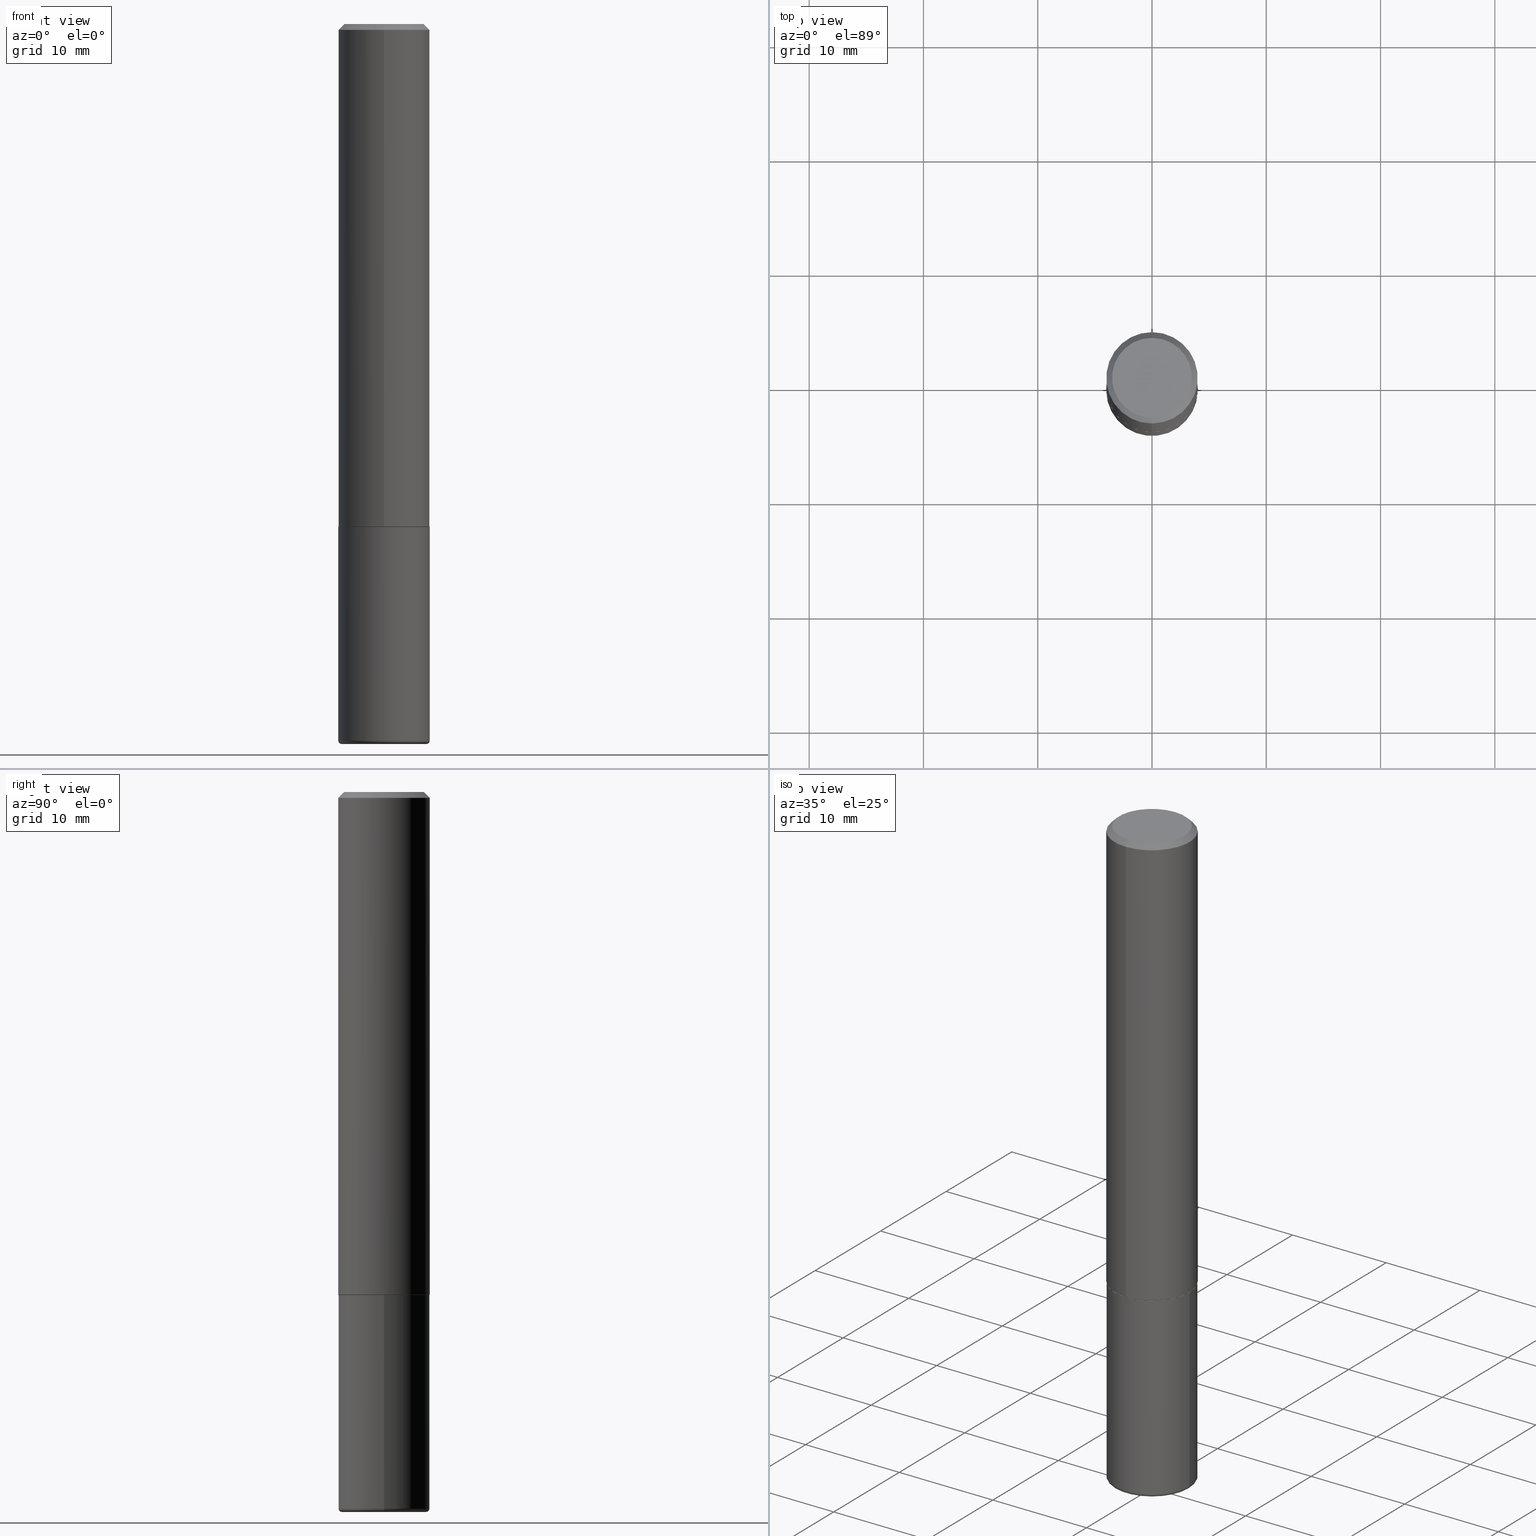
[diagram: canonical four-view strip — front | top / right | iso, engineering-drawing reading convention]
A machine part, canonical four-view strip (front | top / right | iso — engineering-drawing reading convention). The complete STEP part file that produces these views, byte-faithful:
ISO-10303-21;
HEADER;
FILE_DESCRIPTION (( 'STEP AP203' ),
    '1' );
FILE_NAME ('44305.STEP',
    '2024-03-04T07:16:21',
    ( '' ),
    ( '' ),
    'SwSTEP 2.0',
    'SolidWorks 2023',
    '' );
FILE_SCHEMA (( 'CONFIG_CONTROL_DESIGN' ));
ENDSEC;

DATA;
#1 = CARTESIAN_POINT ( 'NONE',  ( -0.1575000000000000289, -7.499616876112147092E-15, -2.468500000000000139 ) ) ;
#2 = APPROVAL_STATUS ( 'not_yet_approved' ) ;
#3 = AXIS2_PLACEMENT_3D ( 'NONE', #131, #175, #193 ) ;
#4 = AXIS2_PLACEMENT_3D ( 'NONE', #261, #385, #259 ) ;
#5 = AXIS2_PLACEMENT_3D ( 'NONE', #219, #50, #149 ) ;
#6 = CARTESIAN_POINT ( 'NONE',  ( 0.000000000000000000, 0.000000000000000000, 0.000000000000000000 ) ) ;
#7 = PRODUCT_DEFINITION ( 'UNKNOWN', '', #18, #207 ) ;
#8 = VERTEX_POINT ( 'NONE', #91 ) ;
#9 = CIRCLE ( 'NONE', #118, 0.1575000000000001954 ) ;
#10 = AXIS2_PLACEMENT_3D ( 'NONE', #314, #346, #23 ) ;
#11 = ORIENTED_EDGE ( 'NONE', *, *, #298, .F. ) ;
#12 = ADVANCED_FACE ( 'NONE', ( #245 ), #262, .T. ) ;
#13 = DIRECTION ( 'NONE',  ( -6.982962677686266711E-15, -1.000000000000000000, 3.491481338843145583E-15 ) ) ;
#14 = DATE_AND_TIME ( #42, #282 ) ;
#15 = VERTEX_POINT ( 'NONE', #401 ) ;
#16 = CONICAL_SURFACE ( 'NONE', #163, 0.1575000000000000289, 0.7853981633974459475 ) ;
#17 = CARTESIAN_POINT ( 'NONE',  ( -1.080528434649015779E-15, -0.1575000000000000844, -0.01999999999999951816 ) ) ;
#18 = PRODUCT_DEFINITION_FORMATION_WITH_SPECIFIED_SOURCE ( 'ANY', '', #293, .NOT_KNOWN. ) ;
#19 = DIRECTION ( 'NONE',  ( -6.982962677686265922E-15, -1.000000000000000000, 3.483989149690439733E-15 ) ) ;
#20 = ADVANCED_FACE ( 'NONE', ( #344 ), #218, .F. ) ;
#21 = MECHANICAL_CONTEXT ( 'NONE', #324, 'mechanical' ) ;
#22 = ORIENTED_EDGE ( 'NONE', *, *, #284, .F. ) ;
#23 = DIRECTION ( 'NONE',  ( -6.982962677686264344E-15, -1.000000000000000000, 3.496114991891764787E-15 ) ) ;
#24 = CALENDAR_DATE ( 2024, 4, 3 ) ;
#25 = CARTESIAN_POINT ( 'NONE',  ( 4.236285612954512953E-29, -6.048293123277982656E-15, -1.732300000000000173 ) ) ;
#26 = VERTEX_POINT ( 'NONE', #116 ) ;
#27 = DIRECTION ( 'NONE',  ( -2.445468806185136597E-29, 3.491481338843145583E-15, 1.000000000000000000 ) ) ;
#28 = CC_DESIGN_APPROVAL ( #181, ( #126 ) ) ;
#29 = CARTESIAN_POINT ( 'NONE',  ( 6.036639748068010694E-29, -8.618721684934306273E-15, -2.468500000000000139 ) ) ;
#30 = DATE_TIME_ROLE ( 'creation_date' ) ;
#31 = EDGE_CURVE ( 'NONE', #364, #238, #178, .T. ) ;
#32 = LINE ( 'NONE', #160, #104 ) ;
#33 = PERSON_AND_ORGANIZATION_ROLE ( 'design_owner' ) ;
#34 = CARTESIAN_POINT ( 'NONE',  ( 4.245348604180634824E-29, -6.035314404008749576E-15, -1.732300000000000173 ) ) ;
#35 = DIRECTION ( 'NONE',  ( -6.982962677686265922E-15, -1.000000000000000000, 3.469013325287948955E-15 ) ) ;
#36 = CIRCLE ( 'NONE', #87, 0.1565000000000000280 ) ;
#37 = CARTESIAN_POINT ( 'NONE',  ( 9.601573681818640393E-16, 0.1375000000000003442, -6.246930207500991880E-16 ) ) ;
#38 = DIRECTION ( 'NONE',  ( -6.982962677686264344E-15, -1.000000000000000000, 3.496114991891764787E-15 ) ) ;
#39 = COORDINATED_UNIVERSAL_TIME_OFFSET ( 5, 0, .BEHIND. ) ;
#40 = LINE ( 'NONE', #71, #216 ) ;
#41 = EDGE_CURVE ( 'NONE', #26, #106, #341, .T. ) ;
#42 = CALENDAR_DATE ( 2024, 4, 3 ) ;
#43 = ORIENTED_EDGE ( 'NONE', *, *, #198, .T. ) ;
#44 = DATE_AND_TIME ( #273, #237 ) ;
#45 = DATE_AND_TIME ( #141, #208 ) ;
#46 = DIRECTION ( 'NONE',  ( -6.982962677686266711E-15, -1.000000000000000000, 3.491179544618865941E-15 ) ) ;
#47 = ADVANCED_FACE ( 'NONE', ( #128 ), #16, .T. ) ;
#48 = CIRCLE ( 'NONE', #10, 0.1575000000000000289 ) ;
#49 = ORIENTED_EDGE ( 'NONE', *, *, #41, .F. ) ;
#50 = DIRECTION ( 'NONE',  ( -2.450700573907887962E-29, 3.483989149690439338E-15, 1.000000000000000000 ) ) ;
#51 = ORIENTED_EDGE ( 'NONE', *, *, #335, .F. ) ;
#52 =( CONVERSION_BASED_UNIT ( 'INCH', #151 ) LENGTH_UNIT ( ) NAMED_UNIT ( #159 ) );
#53 = APPROVAL ( #2, 'UNSPECIFIED' ) ;
#54 = ORIENTED_EDGE ( 'NONE', *, *, #173, .F. ) ;
#55 = CC_DESIGN_SECURITY_CLASSIFICATION ( #126, ( #18 ) ) ;
#56 = LINE ( 'NONE', #100, #375 ) ;
#57 = CARTESIAN_POINT ( 'NONE',  ( 7.138621815623507865E-45, -1.014847803692176449E-30, -2.912890253353251717E-16 ) ) ;
#58 = FACE_OUTER_BOUND ( 'NONE', #215, .T. ) ;
#59 = ORIENTED_EDGE ( 'NONE', *, *, #268, .T. ) ;
#60 = CARTESIAN_POINT ( 'NONE',  ( -1.092833659057858473E-15, -0.1565000000000060787, -1.732299999999999729 ) ) ;
#61 = CARTESIAN_POINT ( 'NONE',  ( 6.065496279980994755E-29, -8.659921164732655335E-15, -2.480300000000000171 ) ) ;
#62 = APPROVAL_ROLE ( '' ) ;
#63 = APPROVAL ( #115, 'UNSPECIFIED' ) ;
#64 = ORIENTED_EDGE ( 'NONE', *, *, #166, .T. ) ;
#65 = CIRCLE ( 'NONE', #233, 0.1456999999999999684 ) ;
#66 = DIRECTION ( 'NONE',  ( -2.445468806185136597E-29, 3.491481338843145583E-15, 1.000000000000000000 ) ) ;
#67 = DIRECTION ( 'NONE',  ( 1.000000000000000000, -6.982962677686267499E-15, 0.000000000000000000 ) ) ;
#68 = CARTESIAN_POINT ( 'NONE',  ( 1.119104808822180283E-15, 0.1574999999999941447, -1.731300000000000727 ) ) ;
#69 = ADVANCED_FACE ( 'NONE', ( #294 ), #391, .T. ) ;
#70 = AXIS2_PLACEMENT_3D ( 'NONE', #112, #184, #145 ) ;
#71 = CARTESIAN_POINT ( 'NONE',  ( 0.1575000000000000289, -1.099816621735587283E-15, 7.679978421878599434E-30 ) ) ;
#72 = ORIENTED_EDGE ( 'NONE', *, *, #93, .F. ) ;
#73 = CLOSED_SHELL ( 'NONE', ( #69, #326, #129, #406, #12, #263 ) ) ;
#74 = CIRCLE ( 'NONE', #328, 0.1575000000000000289 ) ;
#75 = APPROVAL_STATUS ( 'not_yet_approved' ) ;
#76 = EDGE_LOOP ( 'NONE', ( #172, #247, #154, #169 ) ) ;
#77 = AXIS2_PLACEMENT_3D ( 'NONE', #371, #278, #407 ) ;
#78 = ORIENTED_EDGE ( 'NONE', *, *, #363, .F. ) ;
#79 = DIRECTION ( 'NONE',  ( -2.445468806185136877E-29, 3.491481338843145188E-15, 1.000000000000000000 ) ) ;
#80 = EDGE_CURVE ( 'NONE', #15, #106, #40, .T. ) ;
#81 = ORIENTED_EDGE ( 'NONE', *, *, #234, .F. ) ;
#82 = ADVANCED_BREP_SHAPE_REPRESENTATION ( '44305', ( #388, #111, #3 ), #89 ) ;
#83 = CARTESIAN_POINT ( 'NONE',  ( 1.029986994958725760E-15, 0.1375000000000003442, -7.703375334177617246E-16 ) ) ;
#84 = ORIENTED_EDGE ( 'NONE', *, *, #142, .F. ) ;
#85 =( NAMED_UNIT ( * ) SI_UNIT ( $, .STERADIAN. ) SOLID_ANGLE_UNIT ( ) );
#86 = DIRECTION ( 'NONE',  ( -1.000000000000000000, 6.982962677686265922E-15, -4.876176775795935793E-29 ) ) ;
#87 = AXIS2_PLACEMENT_3D ( 'NONE', #34, #288, #46 ) ;
#88 = ORIENTED_EDGE ( 'NONE', *, *, #41, .T. ) ;
#89 =( GEOMETRIC_REPRESENTATION_CONTEXT ( 3 ) GLOBAL_UNCERTAINTY_ASSIGNED_CONTEXT ( ( #113 ) ) GLOBAL_UNIT_ASSIGNED_CONTEXT ( ( #52, #408, #85 ) ) REPRESENTATION_CONTEXT ( 'NONE', 'WORKASPACE' ) );
#90 = DIRECTION ( 'NONE',  ( -2.450700573907887962E-29, 3.483989149690439338E-15, 1.000000000000000000 ) ) ;
#91 = CARTESIAN_POINT ( 'NONE',  ( -0.1456999999999999684, -7.562138637421167650E-15, -2.480300000000000171 ) ) ;
#92 = DIRECTION ( 'NONE',  ( -1.000000000000000000, 7.105427357600960838E-15, 0.000000000000000000 ) ) ;
#93 = EDGE_CURVE ( 'NONE', #369, #135, #256, .T. ) ;
#94 = VERTEX_POINT ( 'NONE', #158 ) ;
#95 = CARTESIAN_POINT ( 'NONE',  ( 7.138621815623507865E-45, -1.014847803692176449E-30, -2.912890253353251717E-16 ) ) ;
#96 = VECTOR ( 'NONE', #123, 39.37007874015748143 ) ;
#97 = LINE ( 'NONE', #157, #196 ) ;
#98 = APPLICATION_CONTEXT ( 'configuration controlled 3d designs of mechanical parts and assemblies' ) ;
#99 = ADVANCED_FACE ( 'NONE', ( #286 ), #356, .T. ) ;
#100 = CARTESIAN_POINT ( 'NONE',  ( 1.099816621735587480E-15, 0.1574999999999999456, -0.02000000000000061798 ) ) ;
#101 = AXIS2_PLACEMENT_3D ( 'NONE', #280, #165, #195 ) ;
#102 = EDGE_CURVE ( 'NONE', #340, #306, #36, .T. ) ;
#103 = AXIS2_PLACEMENT_3D ( 'NONE', #383, #224, #325 ) ;
#104 = VECTOR ( 'NONE', #418, 39.37007874015748854 ) ;
#105 = ORIENTED_EDGE ( 'NONE', *, *, #234, .T. ) ;
#106 = VERTEX_POINT ( 'NONE', #264 ) ;
#107 = DIRECTION ( 'NONE',  ( 5.024295867788319558E-15, 0.7071067811865862085, 0.7071067811865088260 ) ) ;
#108 = SECURITY_CLASSIFICATION_LEVEL ( 'unclassified' ) ;
#109 = AXIS2_PLACEMENT_3D ( 'NONE', #156, #117, #283 ) ;
#110 = EDGE_LOOP ( 'NONE', ( #81, #43, #310, #235 ) ) ;
#111 = MANIFOLD_SOLID_BREP ( 'Body-Move/Copy2[2]', #267 ) ;
#112 = CARTESIAN_POINT ( 'NONE',  ( 4.245348604180634824E-29, -6.035314404008749576E-15, -1.732300000000000173 ) ) ;
#113 = UNCERTAINTY_MEASURE_WITH_UNIT (LENGTH_MEASURE( 1.000000000000000082E-05 ), #52, 'distance_accuracy_value', 'NONE');
#114 = ORIENTED_EDGE ( 'NONE', *, *, #80, .T. ) ;
#115 = APPROVAL_STATUS ( 'not_yet_approved' ) ;
#116 = CARTESIAN_POINT ( 'NONE',  ( -0.1575000000000000289, -6.214402595283986467E-15, -1.732300000000000173 ) ) ;
#117 = DIRECTION ( 'NONE',  ( -2.445468806185136597E-29, 3.491481338843145583E-15, 1.000000000000000000 ) ) ;
#118 = AXIS2_PLACEMENT_3D ( 'NONE', #162, #127, #35 ) ;
#119 = ORIENTED_EDGE ( 'NONE', *, *, #191, .T. ) ;
#120 = AXIS2_PLACEMENT_3D ( 'NONE', #37, #255, #413 ) ;
#121 = LINE ( 'NONE', #322, #96 ) ;
#122 = VERTEX_POINT ( 'NONE', #168 ) ;
#123 = DIRECTION ( 'NONE',  ( -2.450700573907887682E-29, 3.483989149690438944E-15, 1.000000000000000000 ) ) ;
#124 = DIRECTION ( 'NONE',  ( -2.450700573907887682E-29, 3.483989149690438944E-15, 1.000000000000000000 ) ) ;
#125 = ADVANCED_FACE ( 'NONE', ( #296 ), #266, .T. ) ;
#126 = SECURITY_CLASSIFICATION ( '', '', #108 ) ;
#127 = DIRECTION ( 'NONE',  ( -2.450700573907887962E-29, 3.483989149690439338E-15, 1.000000000000000000 ) ) ;
#128 = FACE_OUTER_BOUND ( 'NONE', #303, .T. ) ;
#129 = ADVANCED_FACE ( 'NONE', ( #146 ), #312, .F. ) ;
#130 = AXIS2_PLACEMENT_3D ( 'NONE', #338, #90, #239 ) ;
#131 = CARTESIAN_POINT ( 'NONE',  ( 0.000000000000000000, 0.000000000000000000, 0.000000000000000000 ) ) ;
#132 = ORIENTED_EDGE ( 'NONE', *, *, #173, .T. ) ;
#133 = PERSON_AND_ORGANIZATION ( #302, #226 ) ;
#134 = EDGE_CURVE ( 'NONE', #364, #135, #56, .T. ) ;
#135 = VERTEX_POINT ( 'NONE', #289 ) ;
#136 = AXIS2_PLACEMENT_3D ( 'NONE', #246, #372, #86 ) ;
#137 = CIRCLE ( 'NONE', #362, 0.1375000000000003442 ) ;
#138 = VERTEX_POINT ( 'NONE', #1 ) ;
#139 = DIRECTION ( 'NONE',  ( 1.000000000000000000, -6.982962677686265133E-15, 4.883557194083112340E-29 ) ) ;
#140 = FACE_OUTER_BOUND ( 'NONE', #404, .T. ) ;
#141 = CALENDAR_DATE ( 2024, 4, 3 ) ;
#142 = EDGE_CURVE ( 'NONE', #122, #369, #97, .T. ) ;
#143 = TOROIDAL_SURFACE ( 'NONE', #109, 0.1456999999999999962, 0.01180000000000006218 ) ;
#144 = EDGE_LOOP ( 'NONE', ( #330, #119 ) ) ;
#145 = DIRECTION ( 'NONE',  ( -6.982962677686266711E-15, -1.000000000000000000, 3.491179544618865941E-15 ) ) ;
#146 = FACE_OUTER_BOUND ( 'NONE', #366, .T. ) ;
#147 = APPLICATION_PROTOCOL_DEFINITION ( 'international standard', 'config_control_design', 1994, #98 ) ;
#148 = CARTESIAN_POINT ( 'NONE',  ( 6.036639748068010694E-29, -8.618721684934306273E-15, -2.468500000000000139 ) ) ;
#149 = DIRECTION ( 'NONE',  ( -6.982962677686265922E-15, -1.000000000000000000, 3.483989149690439733E-15 ) ) ;
#150 = DIRECTION ( 'NONE',  ( -2.445468806185136597E-29, 3.491481338843145583E-15, 1.000000000000000000 ) ) ;
#151 = LENGTH_MEASURE_WITH_UNIT ( LENGTH_MEASURE( 0.02539999999999999897 ), #405 );
#152 = FACE_OUTER_BOUND ( 'NONE', #76, .T. ) ;
#153 = DATE_AND_TIME ( #24, #357 ) ;
#154 = ORIENTED_EDGE ( 'NONE', *, *, #93, .T. ) ;
#155 = VECTOR ( 'NONE', #79, 39.37007874015748143 ) ;
#156 = CARTESIAN_POINT ( 'NONE',  ( 6.036639748068010694E-29, -8.618721684934306273E-15, -2.468500000000000139 ) ) ;
#157 = CARTESIAN_POINT ( 'NONE',  ( -1.099816621735587480E-15, -0.1575000000000000844, 5.487282910762445666E-16 ) ) ;
#158 = CARTESIAN_POINT ( 'NONE',  ( 0.1456999999999999684, -9.677338826871543903E-15, -2.480300000000000171 ) ) ;
#159 = DIMENSIONAL_EXPONENTS ( 1.000000000000000000, 0.000000000000000000, 0.000000000000000000, 0.000000000000000000, 0.000000000000000000, 0.000000000000000000, 0.000000000000000000 ) ;
#160 = CARTESIAN_POINT ( 'NONE',  ( -1.092833659057858473E-15, -0.1565000000000060787, -1.732299999999999729 ) ) ;
#161 = ADVANCED_FACE ( 'NONE', ( #152 ), #249, .T. ) ;
#162 = CARTESIAN_POINT ( 'NONE',  ( 4.242897903606727500E-29, -6.031830414859058130E-15, -1.731300000000000283 ) ) ;
#163 = AXIS2_PLACEMENT_3D ( 'NONE', #229, #231, #199 ) ;
#164 = CIRCLE ( 'NONE', #396, 0.1575000000000000011 ) ;
#165 = DIRECTION ( 'NONE',  ( -2.450700573907887962E-29, 3.483989149690439338E-15, 1.000000000000000000 ) ) ;
#166 = EDGE_CURVE ( 'NONE', #176, #122, #9, .T. ) ;
#167 = PERSON_AND_ORGANIZATION ( #302, #226 ) ;
#168 = CARTESIAN_POINT ( 'NONE',  ( -1.099816621735545671E-15, -0.1575000000000062461, -1.731299999999999617 ) ) ;
#169 = ORIENTED_EDGE ( 'NONE', *, *, #134, .F. ) ;
#170 = ORIENTED_EDGE ( 'NONE', *, *, #102, .F. ) ;
#171 = PERSON_AND_ORGANIZATION_ROLE ( 'design_supplier' ) ;
#172 = ORIENTED_EDGE ( 'NONE', *, *, #191, .F. ) ;
#173 = EDGE_CURVE ( 'NONE', #306, #340, #232, .T. ) ;
#174 = LINE ( 'NONE', #17, #241 ) ;
#175 = DIRECTION ( 'NONE',  ( 0.000000000000000000, 0.000000000000000000, 1.000000000000000000 ) ) ;
#176 = VERTEX_POINT ( 'NONE', #68 ) ;
#177 = DIRECTION ( 'NONE',  ( 1.000000000000000000, -6.982962677686344808E-15, 0.000000000000000000 ) ) ;
#178 = CIRCLE ( 'NONE', #236, 0.1375000000000003442 ) ;
#179 = APPROVAL_PERSON_ORGANIZATION ( #332, #181, #399 ) ;
#180 = EDGE_LOOP ( 'NONE', ( #59, #333, #11, #252 ) ) ;
#181 = APPROVAL ( #75, 'UNSPECIFIED' ) ;
#182 = COORDINATED_UNIVERSAL_TIME_OFFSET ( 5, 0, .BEHIND. ) ;
#183 = DIRECTION ( 'NONE',  ( -2.450700573907887962E-29, 3.483989149690439338E-15, 1.000000000000000000 ) ) ;
#184 = DIRECTION ( 'NONE',  ( -2.450700573907887962E-29, 3.483989149690439338E-15, 1.000000000000000000 ) ) ;
#185 = ORIENTED_EDGE ( 'NONE', *, *, #198, .F. ) ;
#186 = CARTESIAN_POINT ( 'NONE',  ( 0.1456999999999999962, -9.636139347073194841E-15, -2.468500000000000139 ) ) ;
#187 = DIRECTION ( 'NONE',  ( 2.438088387897960049E-29, -3.491481338843145188E-15, -1.000000000000000000 ) ) ;
#188 = COORDINATED_UNIVERSAL_TIME_OFFSET ( 5, 0, .BEHIND. ) ;
#189 = AXIS2_PLACEMENT_3D ( 'NONE', #6, #308, #19 ) ;
#190 = ORIENTED_EDGE ( 'NONE', *, *, #102, .T. ) ;
#191 = EDGE_CURVE ( 'NONE', #238, #364, #137, .T. ) ;
#192 = DIRECTION ( 'NONE',  ( 1.000000000000000000, -6.982962677686267499E-15, 0.000000000000000000 ) ) ;
#193 = DIRECTION ( 'NONE',  ( 1.000000000000000000, 0.000000000000000000, 0.000000000000000000 ) ) ;
#194 = DIRECTION ( 'NONE',  ( 4.937700262164536209E-15, 0.7071067811865434649, -0.7071067811865516806 ) ) ;
#195 = DIRECTION ( 'NONE',  ( -6.982962677686266711E-15, -1.000000000000000000, 3.491179544618865941E-15 ) ) ;
#196 = VECTOR ( 'NONE', #124, 39.37007874015748143 ) ;
#197 = CIRCLE ( 'NONE', #331, 0.1575000000000000011 ) ;
#198 = EDGE_CURVE ( 'NONE', #8, #94, #65, .T. ) ;
#199 = DIRECTION ( 'NONE',  ( 6.982962677686264344E-15, 1.000000000000000000, -3.496114991891764787E-15 ) ) ;
#200 = ORIENTED_EDGE ( 'NONE', *, *, #358, .F. ) ;
#201 = CC_DESIGN_DATE_AND_TIME_ASSIGNMENT ( #320, #30, ( #7 ) ) ;
#202 = AXIS2_PLACEMENT_3D ( 'NONE', #214, #402, #370 ) ;
#203 = PERSON_AND_ORGANIZATION_ROLE ( 'classification_officer' ) ;
#204 = ORIENTED_EDGE ( 'NONE', *, *, #268, .F. ) ;
#205 = ORIENTED_EDGE ( 'NONE', *, *, #363, .T. ) ;
#206 = COORDINATED_UNIVERSAL_TIME_OFFSET ( 5, 0, .BEHIND. ) ;
#207 = DESIGN_CONTEXT ( 'detailed design', #98, 'design' ) ;
#208 = LOCAL_TIME ( 2, 16, 21.00000000000000000, #206 ) ;
#209 = ADVANCED_FACE ( 'NONE', ( #416 ), #354, .F. ) ;
#210 = ORIENTED_EDGE ( 'NONE', *, *, #305, .F. ) ;
#211 = CARTESIAN_POINT ( 'NONE',  ( 1.111999381464599194E-15, 0.1564999999999939773, -1.732300000000000839 ) ) ;
#212 = PERSON_AND_ORGANIZATION_ROLE ( 'creator' ) ;
#213 = ORIENTED_EDGE ( 'NONE', *, *, #31, .F. ) ;
#214 = CARTESIAN_POINT ( 'NONE',  ( 0.000000000000000000, 0.000000000000000000, 0.000000000000000000 ) ) ;
#215 = EDGE_LOOP ( 'NONE', ( #190, #269, #78, #210 ) ) ;
#216 = VECTOR ( 'NONE', #355, 39.37007874015748143 ) ;
#217 = CIRCLE ( 'NONE', #130, 0.1575000000000001954 ) ;
#218 = PLANE ( 'NONE',  #77 ) ;
#219 = CARTESIAN_POINT ( 'NONE',  ( 0.000000000000000000, 0.000000000000000000, 0.000000000000000000 ) ) ;
#220 = DIRECTION ( 'NONE',  ( -2.445468806185136597E-29, 3.491481338843145583E-15, 1.000000000000000000 ) ) ;
#221 = FACE_OUTER_BOUND ( 'NONE', #373, .T. ) ;
#222 = CALENDAR_DATE ( 2024, 4, 3 ) ;
#223 = EDGE_LOOP ( 'NONE', ( #200, #336, #114, #49 ) ) ;
#224 = DIRECTION ( 'NONE',  ( -2.445468806185136597E-29, 3.491481338843145583E-15, 1.000000000000000000 ) ) ;
#225 = DIRECTION ( 'NONE',  ( -2.450700573907887962E-29, 3.483989149690439338E-15, 1.000000000000000000 ) ) ;
#226 = ORGANIZATION ( 'UNSPECIFIED', 'UNSPECIFIED', '' ) ;
#227 = CARTESIAN_POINT ( 'NONE',  ( 1.115552095143400487E-15, 0.1564999999999939773, -1.732300000000000839 ) ) ;
#228 = DIRECTION ( 'NONE',  ( -2.445468806185136597E-29, 3.491481338843145583E-15, 1.000000000000000000 ) ) ;
#229 = CARTESIAN_POINT ( 'NONE',  ( 4.901401147815792845E-31, -6.967978299380902441E-17, -0.02000000000000006981 ) ) ;
#230 = EDGE_CURVE ( 'NONE', #176, #135, #121, .T. ) ;
#231 = DIRECTION ( 'NONE',  ( 2.450700573907887962E-29, -3.483989149690439338E-15, -1.000000000000000000 ) ) ;
#232 = CIRCLE ( 'NONE', #101, 0.1565000000000000280 ) ;
#233 = AXIS2_PLACEMENT_3D ( 'NONE', #390, #228, #67 ) ;
#234 = EDGE_CURVE ( 'NONE', #8, #138, #343, .T. ) ;
#235 = ORIENTED_EDGE ( 'NONE', *, *, #352, .F. ) ;
#236 = AXIS2_PLACEMENT_3D ( 'NONE', #57, #183, #313 ) ;
#237 = LOCAL_TIME ( 2, 16, 21.00000000000000000, #360 ) ;
#238 = VERTEX_POINT ( 'NONE', #380 ) ;
#239 = DIRECTION ( 'NONE',  ( -6.982962677686265922E-15, -1.000000000000000000, 3.469013325287948955E-15 ) ) ;
#240 = SHAPE_DEFINITION_REPRESENTATION ( #389, #82 ) ;
#241 = VECTOR ( 'NONE', #243, 39.37007874015748143 ) ;
#242 = ORIENTED_EDGE ( 'NONE', *, *, #142, .T. ) ;
#243 = DIRECTION ( 'NONE',  ( -4.851104656540952442E-15, -0.7071067811865483499, -0.7071067811865467956 ) ) ;
#244 = CC_DESIGN_PERSON_AND_ORGANIZATION_ASSIGNMENT ( #334, #171, ( #18 ) ) ;
#245 = FACE_OUTER_BOUND ( 'NONE', #110, .T. ) ;
#246 = CARTESIAN_POINT ( 'NONE',  ( 4.236285612954512953E-29, -6.048293123277982656E-15, -1.732300000000000173 ) ) ;
#247 = ORIENTED_EDGE ( 'NONE', *, *, #394, .T. ) ;
#248 = CARTESIAN_POINT ( 'NONE',  ( 6.036639748068010694E-29, -8.618721684934306273E-15, -2.468500000000000139 ) ) ;
#249 = CONICAL_SURFACE ( 'NONE', #300, 0.1575000000000000289, 0.7853981633974459475 ) ;
#250 = EDGE_LOOP ( 'NONE', ( #339, #64, #242, #395 ) ) ;
#251 = DIRECTION ( 'NONE',  ( 7.105427357601001859E-15, 1.000000000000000000, -3.491481338843145583E-15 ) ) ;
#252 = ORIENTED_EDGE ( 'NONE', *, *, #80, .F. ) ;
#253 = DIRECTION ( 'NONE',  ( 1.000000000000000000, -6.982962677686268288E-15, 0.000000000000000000 ) ) ;
#254 = PERSON_AND_ORGANIZATION ( #302, #226 ) ;
#255 = DIRECTION ( 'NONE',  ( 2.450700573907887962E-29, -3.483989149690438944E-15, -1.000000000000000000 ) ) ;
#256 = CIRCLE ( 'NONE', #319, 0.1575000000000000289 ) ;
#257 = APPROVAL_PERSON_ORGANIZATION ( #167, #53, #295 ) ;
#258 = DIRECTION ( 'NONE',  ( -2.450700573907887962E-29, 3.483989149690439338E-15, 1.000000000000000000 ) ) ;
#259 = DIRECTION ( 'NONE',  ( 1.000000000000000000, -6.982962677686267499E-15, 4.876176775795935232E-29 ) ) ;
#260 = CC_DESIGN_PERSON_AND_ORGANIZATION_ASSIGNMENT ( #323, #33, ( #293 ) ) ;
#261 = CARTESIAN_POINT ( 'NONE',  ( 0.000000000000000000, 0.000000000000000000, 0.000000000000000000 ) ) ;
#262 = TOROIDAL_SURFACE ( 'NONE', #361, 0.1456999999999999962, 0.01180000000000006218 ) ;
#263 = ADVANCED_FACE ( 'NONE', ( #221 ), #347, .T. ) ;
#264 = CARTESIAN_POINT ( 'NONE',  ( 0.1575000000000000289, -7.148109745013570136E-15, -1.732300000000000173 ) ) ;
#265 = ORIENTED_EDGE ( 'NONE', *, *, #368, .T. ) ;
#266 = CYLINDRICAL_SURFACE ( 'NONE', #189, 0.1575000000000000844 ) ;
#267 = CLOSED_SHELL ( 'NONE', ( #345, #125, #161, #47, #392, #99, #20, #209 ) ) ;
#268 = EDGE_CURVE ( 'NONE', #15, #138, #197, .T. ) ;
#269 = ORIENTED_EDGE ( 'NONE', *, *, #384, .T. ) ;
#270 = PERSON_AND_ORGANIZATION ( #302, #226 ) ;
#271 = ORIENTED_EDGE ( 'NONE', *, *, #305, .T. ) ;
#272 = CARTESIAN_POINT ( 'NONE',  ( -0.1575000000000000289, 1.119104808822157998E-15, -7.747322767151478386E-30 ) ) ;
#273 = CALENDAR_DATE ( 2024, 4, 3 ) ;
#274 = CIRCLE ( 'NONE', #103, 0.1456999999999999684 ) ;
#275 = CC_DESIGN_PERSON_AND_ORGANIZATION_ASSIGNMENT ( #414, #381, ( #7 ) ) ;
#276 = EDGE_LOOP ( 'NONE', ( #170, #54 ) ) ;
#277 = FACE_OUTER_BOUND ( 'NONE', #223, .T. ) ;
#278 = DIRECTION ( 'NONE',  ( -2.450700573907887962E-29, 3.483989149690438944E-15, 1.000000000000000000 ) ) ;
#279 = EDGE_LOOP ( 'NONE', ( #205, #415, #72, #84 ) ) ;
#280 = CARTESIAN_POINT ( 'NONE',  ( 4.245348604180634824E-29, -6.035314404008749576E-15, -1.732300000000000173 ) ) ;
#281 = APPROVAL_DATE_TIME ( #153, #63 ) ;
#282 = LOCAL_TIME ( 2, 16, 21.00000000000000000, #39 ) ;
#283 = DIRECTION ( 'NONE',  ( 1.000000000000000000, -6.982962677686265133E-15, 4.883557194083112340E-29 ) ) ;
#284 = EDGE_CURVE ( 'NONE', #94, #8, #274, .T. ) ;
#285 = DIRECTION ( 'NONE',  ( -2.445468806185136597E-29, 3.491481338843145583E-15, 1.000000000000000000 ) ) ;
#286 = FACE_OUTER_BOUND ( 'NONE', #316, .T. ) ;
#287 = CARTESIAN_POINT ( 'NONE',  ( 4.901401147815792845E-31, -6.967978299380902441E-17, -0.02000000000000006981 ) ) ;
#288 = DIRECTION ( 'NONE',  ( -2.450700573907887962E-29, 3.483989149690439338E-15, 1.000000000000000000 ) ) ;
#289 = CARTESIAN_POINT ( 'NONE',  ( 1.099816621735587480E-15, 0.1574999999999999456, -0.02000000000000061798 ) ) ;
#290 = PRODUCT_RELATED_PRODUCT_CATEGORY ( 'detail', '', ( #293 ) ) ;
#291 = VECTOR ( 'NONE', #107, 39.37007874015748143 ) ;
#292 = DIRECTION ( 'NONE',  ( 2.450700573907887962E-29, -3.483989149690439338E-15, -1.000000000000000000 ) ) ;
#293 = PRODUCT ( '44305', '44305', '', ( #21 ) ) ;
#294 = FACE_OUTER_BOUND ( 'NONE', #180, .T. ) ;
#295 = APPROVAL_ROLE ( '' ) ;
#296 = FACE_OUTER_BOUND ( 'NONE', #279, .T. ) ;
#297 = AXIS2_PLACEMENT_3D ( 'NONE', #25, #150, #409 ) ;
#298 = EDGE_CURVE ( 'NONE', #106, #26, #74, .T. ) ;
#299 = ORIENTED_EDGE ( 'NONE', *, *, #384, .F. ) ;
#300 = AXIS2_PLACEMENT_3D ( 'NONE', #287, #292, #353 ) ;
#301 = APPROVAL_DATE_TIME ( #44, #181 ) ;
#302 = PERSON ( 'UNSPECIFIED', 'UNSPECIFIED', 'UNSPECIFIED', ('UNSPECIFIED'), ('UNSPECIFIED'), ('UNSPECIFIED') ) ;
#303 = EDGE_LOOP ( 'NONE', ( #348, #213, #321, #265 ) ) ;
#304 = CYLINDRICAL_SURFACE ( 'NONE', #202, 0.1575000000000000289 ) ;
#305 = EDGE_CURVE ( 'NONE', #340, #122, #32, .T. ) ;
#306 = VERTEX_POINT ( 'NONE', #227 ) ;
#307 = FACE_OUTER_BOUND ( 'NONE', #250, .T. ) ;
#308 = DIRECTION ( 'NONE',  ( -2.450700573907887962E-29, 3.483989149690439338E-15, 1.000000000000000000 ) ) ;
#309 = CONICAL_SURFACE ( 'NONE', #70, 0.1565000000000000280, 0.7853981633974995713 ) ;
#310 = ORIENTED_EDGE ( 'NONE', *, *, #335, .T. ) ;
#311 = DIRECTION ( 'NONE',  ( 1.000000000000000000, -6.982962677686268288E-15, 0.000000000000000000 ) ) ;
#312 = PLANE ( 'NONE',  #136 ) ;
#313 = DIRECTION ( 'NONE',  ( -6.982962677686266711E-15, -1.000000000000000000, 3.483989149690439733E-15 ) ) ;
#314 = CARTESIAN_POINT ( 'NONE',  ( 4.901401147815792845E-31, -6.967978299380902441E-17, -0.02000000000000006981 ) ) ;
#315 = CC_DESIGN_PERSON_AND_ORGANIZATION_ASSIGNMENT ( #133, #212, ( #18 ) ) ;
#316 = EDGE_LOOP ( 'NONE', ( #299, #132, #271, #378 ) ) ;
#317 = LINE ( 'NONE', #211, #291 ) ;
#318 = DIRECTION ( 'NONE',  ( -1.000000000000000000, 6.982962677686265922E-15, -4.876176775795935793E-29 ) ) ;
#319 = AXIS2_PLACEMENT_3D ( 'NONE', #359, #329, #38 ) ;
#320 = DATE_AND_TIME ( #222, #412 ) ;
#321 = ORIENTED_EDGE ( 'NONE', *, *, #134, .T. ) ;
#322 = CARTESIAN_POINT ( 'NONE',  ( 1.119104808822158195E-15, 0.1575000000000000844, -5.487282910762445666E-16 ) ) ;
#323 = PERSON_AND_ORGANIZATION ( #302, #226 ) ;
#324 = APPLICATION_CONTEXT ( 'configuration controlled 3d designs of mechanical parts and assemblies' ) ;
#325 = DIRECTION ( 'NONE',  ( 1.000000000000000000, -6.982962677686267499E-15, 0.000000000000000000 ) ) ;
#326 = ADVANCED_FACE ( 'NONE', ( #140 ), #143, .T. ) ;
#327 = DIRECTION ( 'NONE',  ( -6.982962677686266711E-15, -1.000000000000000000, 3.483989149690439733E-15 ) ) ;
#328 = AXIS2_PLACEMENT_3D ( 'NONE', #349, #66, #192 ) ;
#329 = DIRECTION ( 'NONE',  ( -2.450700573907887962E-29, 3.483989149690439338E-15, 1.000000000000000000 ) ) ;
#330 = ORIENTED_EDGE ( 'NONE', *, *, #31, .T. ) ;
#331 = AXIS2_PLACEMENT_3D ( 'NONE', #29, #285, #253 ) ;
#332 = PERSON_AND_ORGANIZATION ( #302, #226 ) ;
#333 = ORIENTED_EDGE ( 'NONE', *, *, #358, .T. ) ;
#334 = PERSON_AND_ORGANIZATION ( #302, #226 ) ;
#335 = EDGE_CURVE ( 'NONE', #94, #15, #337, .T. ) ;
#336 = ORIENTED_EDGE ( 'NONE', *, *, #352, .T. ) ;
#337 = CIRCLE ( 'NONE', #342, 0.01180000000000006218 ) ;
#338 = CARTESIAN_POINT ( 'NONE',  ( 4.242897903606727500E-29, -6.031830414859058130E-15, -1.731300000000000283 ) ) ;
#339 = ORIENTED_EDGE ( 'NONE', *, *, #230, .F. ) ;
#340 = VERTEX_POINT ( 'NONE', #60 ) ;
#341 = CIRCLE ( 'NONE', #297, 0.1575000000000000289 ) ;
#342 = AXIS2_PLACEMENT_3D ( 'NONE', #186, #13, #177 ) ;
#343 = CIRCLE ( 'NONE', #377, 0.01180000000000006218 ) ;
#344 = FACE_OUTER_BOUND ( 'NONE', #276, .T. ) ;
#345 = ADVANCED_FACE ( 'NONE', ( #58 ), #309, .T. ) ;
#346 = DIRECTION ( 'NONE',  ( -2.450700573907887962E-29, 3.483989149690439338E-15, 1.000000000000000000 ) ) ;
#347 = PLANE ( 'NONE',  #350 ) ;
#348 = ORIENTED_EDGE ( 'NONE', *, *, #394, .F. ) ;
#349 = CARTESIAN_POINT ( 'NONE',  ( 4.236285612954512953E-29, -6.048293123277982656E-15, -1.732300000000000173 ) ) ;
#350 = AXIS2_PLACEMENT_3D ( 'NONE', #61, #187, #318 ) ;
#351 = DIRECTION ( 'NONE',  ( -6.982962677686266711E-15, -1.000000000000000000, 3.491179544618865941E-15 ) ) ;
#352 = EDGE_CURVE ( 'NONE', #138, #15, #164, .T. ) ;
#353 = DIRECTION ( 'NONE',  ( 6.982962677686264344E-15, 1.000000000000000000, -3.496114991891764787E-15 ) ) ;
#354 = PLANE ( 'NONE',  #120 ) ;
#355 = DIRECTION ( 'NONE',  ( -2.445468806185136877E-29, 3.491481338843145188E-15, 1.000000000000000000 ) ) ;
#356 = CONICAL_SURFACE ( 'NONE', #411, 0.1565000000000000280, 0.7853981633974995713 ) ;
#357 = LOCAL_TIME ( 2, 16, 21.00000000000000000, #182 ) ;
#358 = EDGE_CURVE ( 'NONE', #138, #26, #374, .T. ) ;
#359 = CARTESIAN_POINT ( 'NONE',  ( 4.901401147815792845E-31, -6.967978299380902441E-17, -0.02000000000000006981 ) ) ;
#360 = COORDINATED_UNIVERSAL_TIME_OFFSET ( 5, 0, .BEHIND. ) ;
#361 = AXIS2_PLACEMENT_3D ( 'NONE', #148, #220, #139 ) ;
#362 = AXIS2_PLACEMENT_3D ( 'NONE', #95, #258, #327 ) ;
#363 = EDGE_CURVE ( 'NONE', #122, #176, #217, .T. ) ;
#364 = VERTEX_POINT ( 'NONE', #83 ) ;
#365 = APPROVAL_DATE_TIME ( #14, #53 ) ;
#366 = EDGE_LOOP ( 'NONE', ( #397, #88 ) ) ;
#367 = CYLINDRICAL_SURFACE ( 'NONE', #5, 0.1575000000000000844 ) ;
#368 = EDGE_CURVE ( 'NONE', #135, #369, #48, .T. ) ;
#369 = VERTEX_POINT ( 'NONE', #410 ) ;
#370 = DIRECTION ( 'NONE',  ( 1.000000000000000000, -6.982962677686267499E-15, 4.876176775795935232E-29 ) ) ;
#371 = CARTESIAN_POINT ( 'NONE',  ( 4.245348604180634824E-29, -6.035314404008749576E-15, -1.732300000000000173 ) ) ;
#372 = DIRECTION ( 'NONE',  ( 2.438088387897960049E-29, -3.491481338843145188E-15, -1.000000000000000000 ) ) ;
#373 = EDGE_LOOP ( 'NONE', ( #22, #185 ) ) ;
#374 = LINE ( 'NONE', #272, #155 ) ;
#375 = VECTOR ( 'NONE', #194, 39.37007874015748143 ) ;
#376 = CC_DESIGN_PERSON_AND_ORGANIZATION_ASSIGNMENT ( #270, #203, ( #126 ) ) ;
#377 = AXIS2_PLACEMENT_3D ( 'NONE', #386, #251, #92 ) ;
#378 = ORIENTED_EDGE ( 'NONE', *, *, #166, .F. ) ;
#379 = APPLICATION_PROTOCOL_DEFINITION ( 'international standard', 'config_control_design', 1994, #324 ) ;
#380 = CARTESIAN_POINT ( 'NONE',  ( -1.011923454671301828E-15, -0.1375000000000003442, 1.877594827471114305E-16 ) ) ;
#381 = PERSON_AND_ORGANIZATION_ROLE ( 'creator' ) ;
#382 = ORIENTED_EDGE ( 'NONE', *, *, #284, .T. ) ;
#383 = CARTESIAN_POINT ( 'NONE',  ( 6.065496279980994755E-29, -8.659921164732655335E-15, -2.480300000000000171 ) ) ;
#384 = EDGE_CURVE ( 'NONE', #306, #176, #317, .T. ) ;
#385 = DIRECTION ( 'NONE',  ( -2.445468806185136597E-29, 3.491481338843145583E-15, 1.000000000000000000 ) ) ;
#386 = CARTESIAN_POINT ( 'NONE',  ( -0.1456999999999999962, -7.583460918931839147E-15, -2.468500000000000139 ) ) ;
#387 = APPROVAL_PERSON_ORGANIZATION ( #254, #63, #62 ) ;
#388 = MANIFOLD_SOLID_BREP ( 'Body-Move/Copy2[1]', #73 ) ;
#389 = PRODUCT_DEFINITION_SHAPE ( 'NONE', 'NONE',  #7 ) ;
#390 = CARTESIAN_POINT ( 'NONE',  ( 6.065496279980994755E-29, -8.659921164732655335E-15, -2.480300000000000171 ) ) ;
#391 = CYLINDRICAL_SURFACE ( 'NONE', #4, 0.1575000000000000289 ) ;
#392 = ADVANCED_FACE ( 'NONE', ( #307 ), #367, .T. ) ;
#393 = CC_DESIGN_APPROVAL ( #53, ( #18 ) ) ;
#394 = EDGE_CURVE ( 'NONE', #238, #369, #174, .T. ) ;
#395 = ORIENTED_EDGE ( 'NONE', *, *, #368, .F. ) ;
#396 = AXIS2_PLACEMENT_3D ( 'NONE', #248, #27, #311 ) ;
#397 = ORIENTED_EDGE ( 'NONE', *, *, #298, .T. ) ;
#398 = DATE_TIME_ROLE ( 'classification_date' ) ;
#399 = APPROVAL_ROLE ( '' ) ;
#400 = CC_DESIGN_DATE_AND_TIME_ASSIGNMENT ( #45, #398, ( #126 ) ) ;
#401 = CARTESIAN_POINT ( 'NONE',  ( 0.1575000000000000289, -9.718538306669894543E-15, -2.468500000000000139 ) ) ;
#402 = DIRECTION ( 'NONE',  ( -2.445468806185136597E-29, 3.491481338843145583E-15, 1.000000000000000000 ) ) ;
#403 = CC_DESIGN_APPROVAL ( #63, ( #7 ) ) ;
#404 = EDGE_LOOP ( 'NONE', ( #382, #105, #204, #51 ) ) ;
#405 =( LENGTH_UNIT ( ) NAMED_UNIT ( * ) SI_UNIT ( $, .METRE. ) );
#406 = ADVANCED_FACE ( 'NONE', ( #277 ), #304, .T. ) ;
#407 = DIRECTION ( 'NONE',  ( -6.982962677686265922E-15, -1.000000000000000000, 3.483989149690438944E-15 ) ) ;
#408 =( NAMED_UNIT ( * ) PLANE_ANGLE_UNIT ( ) SI_UNIT ( $, .RADIAN. ) );
#409 = DIRECTION ( 'NONE',  ( 1.000000000000000000, -6.982962677686267499E-15, 0.000000000000000000 ) ) ;
#410 = CARTESIAN_POINT ( 'NONE',  ( -1.080528434649015779E-15, -0.1575000000000000844, -0.01999999999999951816 ) ) ;
#411 = AXIS2_PLACEMENT_3D ( 'NONE', #417, #225, #351 ) ;
#412 = LOCAL_TIME ( 2, 16, 21.00000000000000000, #188 ) ;
#413 = DIRECTION ( 'NONE',  ( 6.982962677686265922E-15, 1.000000000000000000, -3.483989149690438944E-15 ) ) ;
#414 = PERSON_AND_ORGANIZATION ( #302, #226 ) ;
#415 = ORIENTED_EDGE ( 'NONE', *, *, #230, .T. ) ;
#416 = FACE_OUTER_BOUND ( 'NONE', #144, .T. ) ;
#417 = CARTESIAN_POINT ( 'NONE',  ( 4.245348604180634824E-29, -6.035314404008749576E-15, -1.732300000000000173 ) ) ;
#418 = DIRECTION ( 'NONE',  ( -4.937700262164799689E-15, -0.7071067811865812125, 0.7071067811865135999 ) ) ;
ENDSEC;
END-ISO-10303-21;
